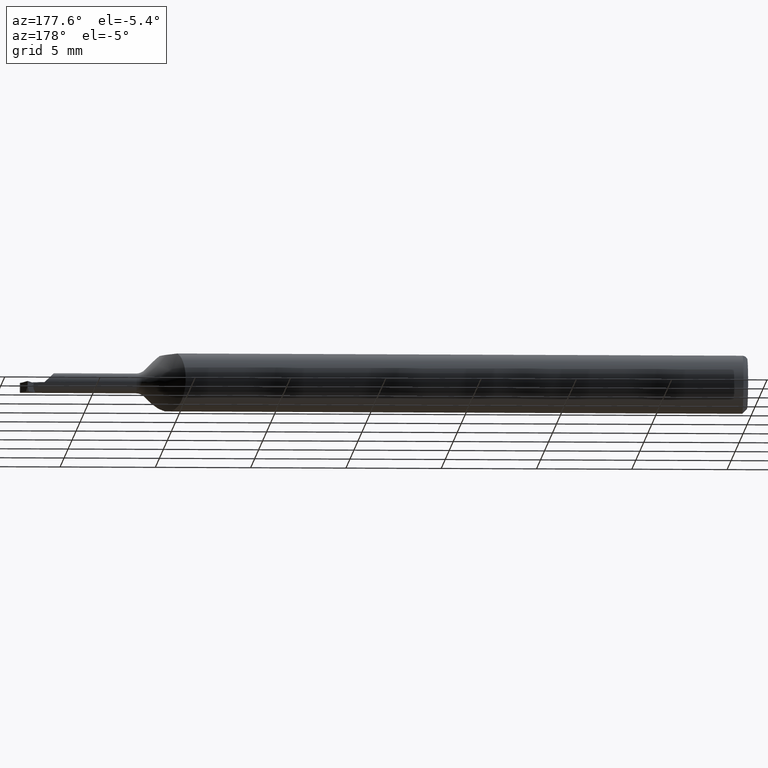
[diagram: clean part render]
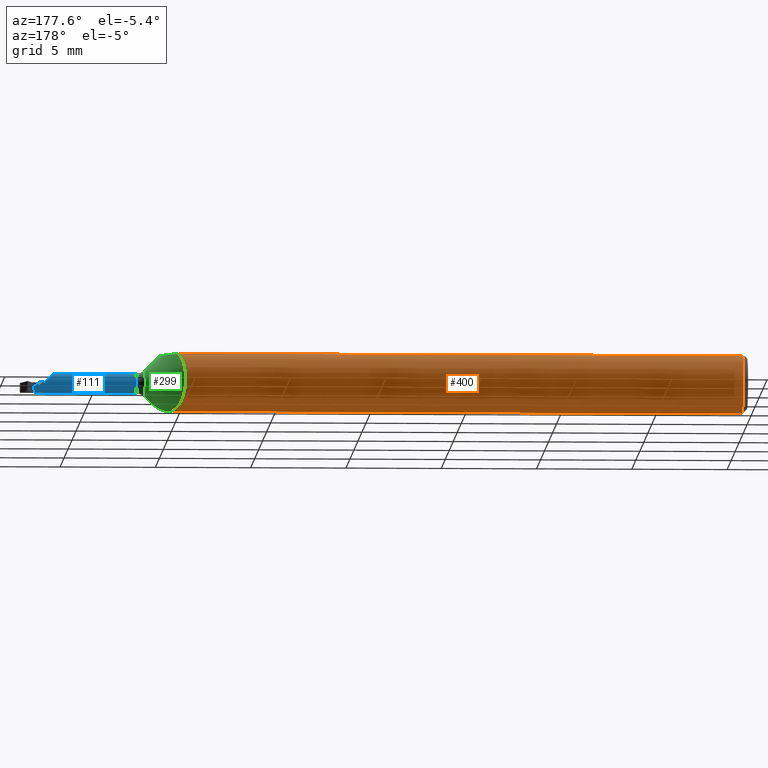
[diagram: same view with three faces highlighted in distinct colors, each labeled with its STEP entity id]
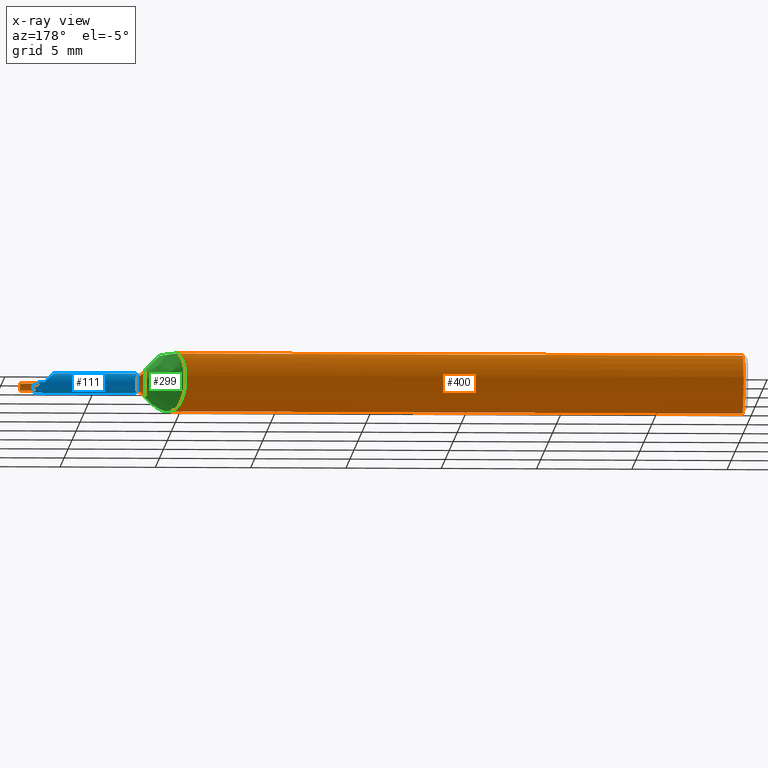
[diagram: x-ray of the same camera — body ghosted, the three highlighted faces saturated]
A machine part, auxiliary view with three faces highlighted in distinct colors.
The next image is the same camera in x-ray (body ghosted, the three faces saturated) — at least one of them is partly hidden behind the body in this view.
Their STEP definitions:

[orange] entity #400 — the highlighted cylindrical surface (edge-blend (fillet) strip) has radius 1.5837 mm, axis along (-1, -0, -0).
#2 = CARTESIAN_POINT ( 'NONE',  ( 1.173024731397746434, 0.03825853781157387973, -0.04944625274692381056 ) ) ;
#11 = ORIENTED_EDGE ( 'NONE', *, *, #515, .F. ) ;
#20 = EDGE_CURVE ( 'NONE', #106, #502, #165, .T. ) ;
#23 = AXIS2_PLACEMENT_3D ( 'NONE', #283, #909, #440 ) ;
#36 = DIRECTION ( 'NONE',  ( -1.000000000000000000, -0.000000000000000000, -0.000000000000000000 ) ) ;
#48 = CARTESIAN_POINT ( 'NONE',  ( 1.242677669529663298, -0.05687745831187993734, 0.02554363396191623378 ) ) ;
#50 = VERTEX_POINT ( 'NONE', #65 ) ;
#51 = CARTESIAN_POINT ( 'NONE',  ( 1.228247189442594367, -0.04585000000002275450, 0.04225281055742636377 ) ) ;
#53 = EDGE_CURVE ( 'NONE', #106, #215, #620, .T. ) ;
#54 = VERTEX_POINT ( 'NONE', #406 ) ;
#56 = CARTESIAN_POINT ( 'NONE',  ( 1.170491615801071417, 0.04372076200736786655, 0.04469405255061478788 ) ) ;
#59 = VECTOR ( 'NONE', #876, 39.37007874015748143 ) ;
#65 = CARTESIAN_POINT ( 'NONE',  ( 1.228247189442594367, -0.04585000000002275450, 0.04225281055742636377 ) ) ;
#69 = CARTESIAN_POINT ( 'NONE',  ( 1.189873853040696261, 0.005509881107685125033, -0.06225661922154390043 ) ) ;
#70 = CARTESIAN_POINT ( 'NONE',  ( 1.247200815795312501, -0.05905930906372162947, 0.02011672188027488484 ) ) ;
#74 = CARTESIAN_POINT ( 'NONE',  ( 1.445300901182856812, -0.06233851456489739040, 0.004849098817142990028 ) ) ;
#81 = CARTESIAN_POINT ( 'NONE',  ( 1.242677669529663298, -0.05687745831187993734, 0.02554363396191623378 ) ) ;
#84 = EDGE_CURVE ( 'NONE', #878, #54, #1014, .T. ) ;
#85 = CARTESIAN_POINT ( 'NONE',  ( 0.009999999999999620304, 0.02870365830342891042, 0.05534999999999997561 ) ) ;
#90 = CARTESIAN_POINT ( 'NONE',  ( 1.233105114234022359, -0.05032679336781536311, -0.03739488576597743696 ) ) ;
#106 = VERTEX_POINT ( 'NONE', #224 ) ;
#125 = LINE ( 'NONE', #997, #933 ) ;
#128 = EDGE_CURVE ( 'NONE', #882, #905, #211, .T. ) ;
#131 = CARTESIAN_POINT ( 'NONE',  ( 1.499999999999999778, 0.000000000000000000, 0.000000000000000000 ) ) ;
#136 = CARTESIAN_POINT ( 'NONE',  ( 1.171349200367078680, 0.04186449944433034975, -0.04644039343514746315 ) ) ;
#137 = CARTESIAN_POINT ( 'NONE',  ( 1.256594200296845099, -0.06073604143947654993, 0.01409452979925854450 ) ) ;
#139 = CIRCLE ( 'NONE', #226, 0.06235000000000000264 ) ;
#142 = CARTESIAN_POINT ( 'NONE',  ( 1.212555030127062894, -0.02870365830342886532, 0.05534999999999997561 ) ) ;
#143 = CARTESIAN_POINT ( 'NONE',  ( 1.164106684748499321, 0.05811786118021210895, -0.02310481078010277051 ) ) ;
#150 = CARTESIAN_POINT ( 'NONE',  ( 1.176699005073006843, 0.03059440106361651854, -0.05452183278055570959 ) ) ;
#155 = CARTESIAN_POINT ( 'NONE',  ( 1.228247189442594367, -0.04584999999999999493, -0.04225281055740553321 ) ) ;
#165 = B_SPLINE_CURVE_WITH_KNOTS ( 'NONE', 3,
 ( #397, #137, #700, #70, #794, #81 ),
 .UNSPECIFIED., .F., .F.,
 ( 4, 2, 4 ),
 ( 0.000000000000000000, 0.0002819293705660921791, 0.0005638587411321842498 ),
 .UNSPECIFIED. ) ;
#176 = CARTESIAN_POINT ( 'NONE',  ( 1.238059320528413609, -0.05407498869050337414, -0.03178383256865345563 ) ) ;
#181 = CARTESIAN_POINT ( 'NONE',  ( 1.247193640274936843, -0.05905648292962700080, -0.02012478269061568001 ) ) ;
#188 = FACE_OUTER_BOUND ( 'NONE', #342, .T. ) ;
#189 = CIRCLE ( 'NONE', #276, 0.06235000000000000264 ) ;
#197 = CARTESIAN_POINT ( 'NONE',  ( 1.238067595673462140, -0.05408001014786927713, 0.03177265139793906956 ) ) ;
#203 = ORIENTED_EDGE ( 'NONE', *, *, #53, .F. ) ;
#207 = EDGE_CURVE ( 'NONE', #807, #812, #555, .T. ) ;
#211 = B_SPLINE_CURVE_WITH_KNOTS ( 'NONE', 3,
 ( #260, #811, #181, #565, #501, #898 ),
 .UNSPECIFIED., .F., .F.,
 ( 4, 2, 4 ),
 ( 0.000000000000000000, 0.0002799275019256962285, 0.0005598550038513923485 ),
 .UNSPECIFIED. ) ;
#213 = CARTESIAN_POINT ( 'NONE',  ( 1.449999999999999734, -0.06234981956669986836, 0.0001500000000000031582 ) ) ;
#215 = VERTEX_POINT ( 'NONE', #797 ) ;
#217 = DIRECTION ( 'NONE',  ( 0.000000000000000000, 0.000000000000000000, -1.000000000000000000 ) ) ;
#218 = DIRECTION ( 'NONE',  ( -1.000000000000000000, -0.000000000000000000, -0.000000000000000000 ) ) ;
#223 = CARTESIAN_POINT ( 'NONE',  ( 1.212555030127062894, -0.02870365830342886532, 0.05534999999999997561 ) ) ;
#224 = CARTESIAN_POINT ( 'NONE',  ( 1.260355339059327173, -0.06073604143947654993, 0.01409452979925854450 ) ) ;
#226 = AXIS2_PLACEMENT_3D ( 'NONE', #131, #448, #217 ) ;
#233 = CARTESIAN_POINT ( 'NONE',  ( 1.200027046801134700, -0.01123939366574174502, -0.06146755997571435454 ) ) ;
#237 = LINE ( 'NONE', #607, #601 ) ;
#239 = CARTESIAN_POINT ( 'NONE',  ( 1.359999999999999654, -0.06073604143947654993, 0.01409452979925854450 ) ) ;
#248 = CARTESIAN_POINT ( 'NONE',  ( 0.009999999999999620304, 0.000000000000000000, -0.06235000000000000264 ) ) ;
#260 = CARTESIAN_POINT ( 'NONE',  ( 1.242677669529663298, -0.05687745831187995815, -0.02554363396191619215 ) ) ;
#270 = EDGE_CURVE ( 'NONE', #539, #594, #636, .T. ) ;
#276 = AXIS2_PLACEMENT_3D ( 'NONE', #655, #559, #484 ) ;
#279 =( BOUNDED_CURVE ( )  B_SPLINE_CURVE ( 3, ( #213, #74, #859, #847 ),
 .UNSPECIFIED., .F., .F. ) 
 B_SPLINE_CURVE_WITH_KNOTS ( ( 4, 4 ),
 ( 4.714794756562621814, 4.940414924607585689 ),
 .UNSPECIFIED. ) 
 CURVE ( )  GEOMETRIC_REPRESENTATION_ITEM ( )  RATIONAL_B_SPLINE_CURVE ( ( 1.000000000000000000, 0.9957624584620177188, 0.9957624584620177188, 1.000000000000000000 ) ) 
 REPRESENTATION_ITEM ( '' )  );
#283 = CARTESIAN_POINT ( 'NONE',  ( 0.009999999999999620304, 0.000000000000000000, 0.000000000000000000 ) ) ;
#305 = EDGE_CURVE ( 'NONE', #50, #502, #378, .T. ) ;
#311 = CARTESIAN_POINT ( 'NONE',  ( 1.168995965620343469, 0.04701950172801857425, 0.04122538665726509927 ) ) ;
#316 = CARTESIAN_POINT ( 'NONE',  ( 0.009999999999999623773, -0.02870365830342891042, 0.05534999999999997561 ) ) ;
#318 = DIRECTION ( 'NONE',  ( -1.000000000000000000, -0.000000000000000000, -0.000000000000000000 ) ) ;
#321 = CARTESIAN_POINT ( 'NONE',  ( 1.163436468694904802, 0.05967634408255791806, 0.02057378980030917862 ) ) ;
#324 = CARTESIAN_POINT ( 'NONE',  ( 1.242677669529663298, -0.05687745831187995815, -0.02554363396191619215 ) ) ;
#342 = EDGE_LOOP ( 'NONE', ( #664, #895, #675, #467, #349, #203, #541, #609, #781, #581, #901, #534, #371, #970, #11, #679 ) ) ;
#349 = ORIENTED_EDGE ( 'NONE', *, *, #877, .T. ) ;
#351 = EDGE_CURVE ( 'NONE', #594, #638, #125, .T. ) ;
#359 = DIRECTION ( 'NONE',  ( 0.000000000000000000, 0.000000000000000000, 1.000000000000000000 ) ) ;
#364 = AXIS2_PLACEMENT_3D ( 'NONE', #677, #917, #435 ) ;
#371 = ORIENTED_EDGE ( 'NONE', *, *, #351, .T. ) ;
#378 = B_SPLINE_CURVE_WITH_KNOTS ( 'NONE', 3,
 ( #51, #591, #197, #48 ),
 .UNSPECIFIED., .F., .F.,
 ( 4, 4 ),
 ( 0.0006779514429391571284, 0.001302524482020356571 ),
 .UNSPECIFIED. ) ;
#379 = CARTESIAN_POINT ( 'NONE',  ( 1.162246055871232198, 0.06246055375697842638, -0.009065539242572986933 ) ) ;
#380 = VECTOR ( 'NONE', #318, 39.37007874015748143 ) ;
#393 = VERTEX_POINT ( 'NONE', #903 ) ;
#394 = VERTEX_POINT ( 'NONE', #508 ) ;
#397 = CARTESIAN_POINT ( 'NONE',  ( 1.260355339059327173, -0.06073604143947654993, 0.01409452979925854450 ) ) ;
#400 = ADVANCED_FACE ( 'NONE', ( #188 ), #828, .T. ) ;
#406 = CARTESIAN_POINT ( 'NONE',  ( 1.449999999999999734, -0.06234999999999999570, -6.429183357567478880E-17 ) ) ;
#417 = EDGE_CURVE ( 'NONE', #393, #905, #237, .T. ) ;
#432 = CARTESIAN_POINT ( 'NONE',  ( 1.499999999999999778, 0.000000000000000000, 0.000000000000000000 ) ) ;
#435 = DIRECTION ( 'NONE',  ( 0.000000000000000000, 0.000000000000000000, -1.000000000000000000 ) ) ;
#440 = DIRECTION ( 'NONE',  ( 0.000000000000000000, 0.000000000000000000, -1.000000000000000000 ) ) ;
#448 = DIRECTION ( 'NONE',  ( 1.000000000000000000, 0.000000000000000000, 0.000000000000000000 ) ) ;
#451 = EDGE_CURVE ( 'NONE', #807, #50, #563, .T. ) ;
#452 = EDGE_CURVE ( 'NONE', #394, #638, #551, .T. ) ;
#455 = CARTESIAN_POINT ( 'NONE',  ( 1.260355339059327173, -0.06073604143947654993, -0.01409452979925854450 ) ) ;
#457 = CARTESIAN_POINT ( 'NONE',  ( 1.165159146366741005, 0.05562058556853785585, 0.02975310323614190761 ) ) ;
#465 = CARTESIAN_POINT ( 'NONE',  ( 1.449999999999999734, -0.06234981956669986836, 0.0001500000000000031582 ) ) ;
#467 = ORIENTED_EDGE ( 'NONE', *, *, #587, .T. ) ;
#470 = VERTEX_POINT ( 'NONE', #465 ) ;
#478 = CARTESIAN_POINT ( 'NONE',  ( 1.499999999999999778, -0.02870365830342891042, 0.05534999999999997561 ) ) ;
#484 = DIRECTION ( 'NONE',  ( 0.000000000000000000, 0.000000000000000000, 1.000000000000000000 ) ) ;
#501 = CARTESIAN_POINT ( 'NONE',  ( 1.256593308052265545, -0.06073604143947656381, -0.01409452979925855318 ) ) ;
#502 = VERTEX_POINT ( 'NONE', #649 ) ;
#508 = CARTESIAN_POINT ( 'NONE',  ( 1.228247189442594367, -0.04584999999999999493, -0.04225281055740553321 ) ) ;
#515 = EDGE_CURVE ( 'NONE', #882, #394, #939, .T. ) ;
#516 = CARTESIAN_POINT ( 'NONE',  ( 1.177645972266010643, 0.02870365830342895205, 0.05534999999999997561 ) ) ;
#533 = CARTESIAN_POINT ( 'NONE',  ( 1.216572766500303659, -0.03394577272307501559, -0.05291155452862312397 ) ) ;
#534 = ORIENTED_EDGE ( 'NONE', *, *, #270, .T. ) ;
#537 = CARTESIAN_POINT ( 'NONE',  ( 1.185151787421268033, 0.01405668390900592819, -0.06089872793580693167 ) ) ;
#539 = VERTEX_POINT ( 'NONE', #248 ) ;
#541 = ORIENTED_EDGE ( 'NONE', *, *, #20, .T. ) ;
#547 = CARTESIAN_POINT ( 'NONE',  ( 1.175644335077459246, 0.03275731315662763071, 0.05324783696863134158 ) ) ;
#551 = B_SPLINE_CURVE_WITH_KNOTS ( 'NONE', 3,
 ( #155, #624, #533, #872, #937, #233, #628, #767, #69, #537, #693, #853, #150, #2, #136, #697, #865, #787, #143, #379, #1013, #321, #457, #311, #56, #688, #547, #1017 ),
 .UNSPECIFIED., .F., .F.,
 ( 4, 2, 2, 2, 2, 2, 2, 2, 2, 2, 2, 2, 2, 4 ),
 ( 0.0009871020189959989026, 0.001737112087433813953, 0.002112117121652724513, 0.002487122155871634641, 0.002862127190090545201, 0.003237132224309455762, 0.003612137258528365889, 0.003987142292747276884, 0.004362147326966187011, 0.004737152361185097138, 0.005487162429622919127, 0.006237172498060739381, 0.006612177532279651243, 0.006987182566498564840 ),
 .UNSPECIFIED. ) ;
#555 = LINE ( 'NONE', #478, #59 ) ;
#559 = DIRECTION ( 'NONE',  ( -1.000000000000000000, -0.000000000000000000, -0.000000000000000000 ) ) ;
#563 = B_SPLINE_CURVE_WITH_KNOTS ( 'NONE', 3,
 ( #223, #773, #779, #868 ),
 .UNSPECIFIED., .F., .F.,
 ( 4, 4 ),
 ( 5.235567652434724495E-07, 0.0006779514429391571284 ),
 .UNSPECIFIED. ) ;
#565 = CARTESIAN_POINT ( 'NONE',  ( 1.253101150543774578, -0.06036353463636463107, -0.01577715882426994690 ) ) ;
#581 = ORIENTED_EDGE ( 'NONE', *, *, #207, .T. ) ;
#582 = VECTOR ( 'NONE', #947, 39.37007874015748143 ) ;
#587 = EDGE_CURVE ( 'NONE', #54, #470, #189, .T. ) ;
#591 = CARTESIAN_POINT ( 'NONE',  ( 1.233135177025256324, -0.05035449756460536053, 0.03736482297474335440 ) ) ;
#594 = VERTEX_POINT ( 'NONE', #85 ) ;
#601 = VECTOR ( 'NONE', #218, 39.37007874015748143 ) ;
#607 = CARTESIAN_POINT ( 'NONE',  ( 1.359999999999999654, -0.06073604143947654993, -0.01409452979925854450 ) ) ;
#609 = ORIENTED_EDGE ( 'NONE', *, *, #305, .F. ) ;
#620 = LINE ( 'NONE', #239, #582 ) ;
#624 = CARTESIAN_POINT ( 'NONE',  ( 1.222447870617619392, -0.04050567023612468981, -0.04805212938238100778 ) ) ;
#628 = CARTESIAN_POINT ( 'NONE',  ( 1.197376058183617031, -0.007077928840765262790, -0.06208801370646226114 ) ) ;
#636 = CIRCLE ( 'NONE', #23, 0.06235000000000000264 ) ;
#638 = VERTEX_POINT ( 'NONE', #516 ) ;
#649 = CARTESIAN_POINT ( 'NONE',  ( 1.242677669529663298, -0.05687745831187993734, 0.02554363396191623378 ) ) ;
#655 = CARTESIAN_POINT ( 'NONE',  ( 1.449999999999999734, 0.000000000000000000, 0.000000000000000000 ) ) ;
#664 = ORIENTED_EDGE ( 'NONE', *, *, #417, .F. ) ;
#667 = EDGE_CURVE ( 'NONE', #812, #539, #771, .T. ) ;
#675 = ORIENTED_EDGE ( 'NONE', *, *, #84, .T. ) ;
#677 = CARTESIAN_POINT ( 'NONE',  ( 0.009999999999999620304, 0.000000000000000000, 0.000000000000000000 ) ) ;
#679 = ORIENTED_EDGE ( 'NONE', *, *, #128, .T. ) ;
#688 = CARTESIAN_POINT ( 'NONE',  ( 1.173801016958285093, 0.03662170433257466023, 0.05067459063159267946 ) ) ;
#693 = CARTESIAN_POINT ( 'NONE',  ( 1.182876066566163065, 0.01836177356840440131, -0.05974854137848181063 ) ) ;
#696 = CARTESIAN_POINT ( 'NONE',  ( 1.499999999999999778, -0.06234999999999984999, -6.429183357567480113E-17 ) ) ;
#697 = CARTESIAN_POINT ( 'NONE',  ( 1.168408813451958128, 0.04831738170102994195, -0.03968346105990002565 ) ) ;
#700 = CARTESIAN_POINT ( 'NONE',  ( 1.253121605483960899, -0.06036681601740046671, 0.01576489804007136925 ) ) ;
#716 = CARTESIAN_POINT ( 'NONE',  ( 1.228247189442594367, -0.04584999999999999493, -0.04225281055740553321 ) ) ;
#751 = DIRECTION ( 'NONE',  ( 1.000000000000000000, 0.000000000000000000, 0.000000000000000000 ) ) ;
#767 = CARTESIAN_POINT ( 'NONE',  ( 1.192311695849070485, 0.001278669187943269961, -0.06247706401389704206 ) ) ;
#771 = CIRCLE ( 'NONE', #364, 0.06235000000000000264 ) ;
#773 = CARTESIAN_POINT ( 'NONE',  ( 1.217738018010482204, -0.03525388898514154185, 0.05195315115995453176 ) ) ;
#779 = CARTESIAN_POINT ( 'NONE',  ( 1.222945553142962716, -0.04096430677835127820, 0.04755444685703752450 ) ) ;
#781 = ORIENTED_EDGE ( 'NONE', *, *, #451, .F. ) ;
#787 = CARTESIAN_POINT ( 'NONE',  ( 1.164952412170646712, 0.05615467778870777971, -0.02752406185891902168 ) ) ;
#794 = CARTESIAN_POINT ( 'NONE',  ( 1.244762073902410338, -0.05814229991040521101, 0.02272723847964026531 ) ) ;
#797 = CARTESIAN_POINT ( 'NONE',  ( 1.436055470200741313, -0.06073604143947655687, 0.01409452979925853583 ) ) ;
#807 = VERTEX_POINT ( 'NONE', #142 ) ;
#811 = CARTESIAN_POINT ( 'NONE',  ( 1.244762867054338695, -0.05814278120451760873, -0.02272616679243027321 ) ) ;
#812 = VERTEX_POINT ( 'NONE', #316 ) ;
#828 = CYLINDRICAL_SURFACE ( 'NONE', #966, 0.06235000000000000264 ) ;
#847 = CARTESIAN_POINT ( 'NONE',  ( 1.436055470200741313, -0.06073604143947655687, 0.01409452979925853583 ) ) ;
#853 = CARTESIAN_POINT ( 'NONE',  ( 1.178664618266681563, 0.02660368881035467259, -0.05656223711201066595 ) ) ;
#859 = CARTESIAN_POINT ( 'NONE',  ( 1.440632943920306275, -0.06179829933802637870, 0.009517056079693416229 ) ) ;
#865 = CARTESIAN_POINT ( 'NONE',  ( 1.167110507043975787, 0.05123749084332871601, -0.03585584123747483781 ) ) ;
#866 = CARTESIAN_POINT ( 'NONE',  ( 1.499999999999999778, -0.06235000000000000264, -6.429183357567480113E-17 ) ) ;
#868 = CARTESIAN_POINT ( 'NONE',  ( 1.228247189442594367, -0.04585000000002275450, 0.04225281055742636377 ) ) ;
#872 = CARTESIAN_POINT ( 'NONE',  ( 1.208190346731367937, -0.02306498721321714046, -0.05806578391750739226 ) ) ;
#876 = DIRECTION ( 'NONE',  ( -1.000000000000000000, -0.000000000000000000, -0.000000000000000000 ) ) ;
#877 = EDGE_CURVE ( 'NONE', #470, #215, #279, .T. ) ;
#878 = VERTEX_POINT ( 'NONE', #696 ) ;
#882 = VERTEX_POINT ( 'NONE', #1012 ) ;
#883 = EDGE_CURVE ( 'NONE', #878, #393, #139, .T. ) ;
#895 = ORIENTED_EDGE ( 'NONE', *, *, #883, .F. ) ;
#898 = CARTESIAN_POINT ( 'NONE',  ( 1.260355339059327173, -0.06073604143947654993, -0.01409452979925854450 ) ) ;
#901 = ORIENTED_EDGE ( 'NONE', *, *, #667, .T. ) ;
#903 = CARTESIAN_POINT ( 'NONE',  ( 1.499999999999999778, -0.06073604143947654299, -0.01409452979925858093 ) ) ;
#905 = VERTEX_POINT ( 'NONE', #455 ) ;
#909 = DIRECTION ( 'NONE',  ( 1.000000000000000000, -0.000000000000000000, -0.000000000000000000 ) ) ;
#917 = DIRECTION ( 'NONE',  ( 1.000000000000000000, -0.000000000000000000, -0.000000000000000000 ) ) ;
#933 = VECTOR ( 'NONE', #751, 39.37007874015748143 ) ;
#937 = CARTESIAN_POINT ( 'NONE',  ( 1.205447206104312885, -0.01924998405761402936, -0.05944764934901262260 ) ) ;
#939 = B_SPLINE_CURVE_WITH_KNOTS ( 'NONE', 3,
 ( #324, #176, #90, #716 ),
 .UNSPECIFIED., .F., .F.,
 ( 4, 4 ),
 ( 0.0003588398704150966723, 0.0009871020189959989026 ),
 .UNSPECIFIED. ) ;
#947 = DIRECTION ( 'NONE',  ( 1.000000000000000000, 0.000000000000000000, 0.000000000000000000 ) ) ;
#966 = AXIS2_PLACEMENT_3D ( 'NONE', #432, #36, #359 ) ;
#970 = ORIENTED_EDGE ( 'NONE', *, *, #452, .F. ) ;
#997 = CARTESIAN_POINT ( 'NONE',  ( 1.499999999999999778, 0.02870365830342891042, 0.05534999999999997561 ) ) ;
#1012 = CARTESIAN_POINT ( 'NONE',  ( 1.242677669529663298, -0.05687745831187995815, -0.02554363396191619215 ) ) ;
#1013 = CARTESIAN_POINT ( 'NONE',  ( 1.161974985685638506, 0.06311232005218925245, 0.001175554097938812537 ) ) ;
#1014 = LINE ( 'NONE', #866, #380 ) ;
#1017 = CARTESIAN_POINT ( 'NONE',  ( 1.177645972266010643, 0.02870365830342895205, 0.05534999999999997561 ) ) ;

[blue] entity #111 — the highlighted cylindrical surface (edge-blend (fillet) strip) has radius 0.5207 mm, axis along (-1, -0, -0).
#1 = LINE ( 'NONE', #377, #672 ) ;
#5 = LINE ( 'NONE', #17, #873 ) ;
#17 = CARTESIAN_POINT ( 'NONE',  ( 1.249999999999999778, -0.04585000000000000187, -0.02050000000000000086 ) ) ;
#19 = ORIENTED_EDGE ( 'NONE', *, *, #738, .T. ) ;
#28 = EDGE_LOOP ( 'NONE', ( #429, #133, #44, #889, #19, #437, #110, #255, #934, #73, #372, #492 ) ) ;
#30 = LINE ( 'NONE', #747, #567 ) ;
#33 = EDGE_CURVE ( 'NONE', #831, #66, #1004, .T. ) ;
#44 = ORIENTED_EDGE ( 'NONE', *, *, #126, .T. ) ;
#57 = VERTEX_POINT ( 'NONE', #388 ) ;
#66 = VERTEX_POINT ( 'NONE', #231 ) ;
#67 = CARTESIAN_POINT ( 'NONE',  ( 1.449999999999999734, -0.02535054878783337545, 0.0001500000000000031310 ) ) ;
#73 = ORIENTED_EDGE ( 'NONE', *, *, #956, .F. ) ;
#77 = DIRECTION ( 'NONE',  ( -1.000000000000000000, -0.000000000000000000, -0.000000000000000000 ) ) ;
#79 = CARTESIAN_POINT ( 'NONE',  ( 1.473184286881441540, -0.02868510590563277604, -0.01223947311910594284 ) ) ;
#83 = CARTESIAN_POINT ( 'NONE',  ( 1.464240087305805904, -0.02562850207324500126, -0.003909411902700324001 ) ) ;
#92 = VERTEX_POINT ( 'NONE', #612 ) ;
#104 = DIRECTION ( 'NONE',  ( 0.000000000000000000, 0.000000000000000000, 1.000000000000000000 ) ) ;
#105 = AXIS2_PLACEMENT_3D ( 'NONE', #729, #195, #287 ) ;
#110 = ORIENTED_EDGE ( 'NONE', *, *, #320, .T. ) ;
#111 = ADVANCED_FACE ( 'NONE', ( #144 ), #462, .T. ) ;
#126 = EDGE_CURVE ( 'NONE', #974, #173, #985, .T. ) ;
#133 = ORIENTED_EDGE ( 'NONE', *, *, #496, .T. ) ;
#144 = FACE_OUTER_BOUND ( 'NONE', #28, .T. ) ;
#158 = CARTESIAN_POINT ( 'NONE',  ( 1.462970569512303642, -0.02544130778768836226, -0.001932687813155591679 ) ) ;
#173 = VERTEX_POINT ( 'NONE', #346 ) ;
#175 = CARTESIAN_POINT ( 'NONE',  ( 1.472057310805445995, -0.03198806042916387676, -0.01588347955703180853 ) ) ;
#195 = DIRECTION ( 'NONE',  ( -1.000000000000000000, -0.000000000000000000, -0.000000000000000000 ) ) ;
#231 = CARTESIAN_POINT ( 'NONE',  ( 1.449999999999999734, -0.02535000000000000794, -6.429183357567478880E-17 ) ) ;
#255 = ORIENTED_EDGE ( 'NONE', *, *, #800, .T. ) ;
#287 = DIRECTION ( 'NONE',  ( 0.000000000000000000, 0.000000000000000000, 1.000000000000000000 ) ) ;
#298 = DIRECTION ( 'NONE',  ( -1.000000000000000000, -0.000000000000000000, -0.000000000000000000 ) ) ;
#303 = CARTESIAN_POINT ( 'NONE',  ( 1.462970569512303642, -0.02544130778768836226, -0.001932687813155591679 ) ) ;
#312 = CARTESIAN_POINT ( 'NONE',  ( 1.449999999999999734, -0.04585000000000000187, 0.000000000000000000 ) ) ;
#313 = AXIS2_PLACEMENT_3D ( 'NONE', #881, #742, #104 ) ;
#320 = EDGE_CURVE ( 'NONE', #66, #652, #370, .T. ) ;
#326 = AXIS2_PLACEMENT_3D ( 'NONE', #312, #77, #548 ) ;
#334 = CARTESIAN_POINT ( 'NONE',  ( 1.473242438454203329, -0.02684273098138087454, -0.007679435165026234078 ) ) ;
#346 = CARTESIAN_POINT ( 'NONE',  ( 1.260355339059327173, -0.04585000000000000187, 0.02050000000000000086 ) ) ;
#348 =( BOUNDED_CURVE ( )  B_SPLINE_CURVE ( 3, ( #427, #996, #438, #756 ),
 .UNSPECIFIED., .F., .T. ) 
 B_SPLINE_CURVE_WITH_KNOTS ( ( 4, 4 ),
 ( 0.000000000000000000, 1.563479188330445746 ),
 .UNSPECIFIED. ) 
 CURVE ( )  GEOMETRIC_REPRESENTATION_ITEM ( )  RATIONAL_B_SPLINE_CURVE ( ( 1.000000000000000000, 0.8064593614509849573, 0.8064593614509849573, 1.000000000000000000 ) ) 
 REPRESENTATION_ITEM ( '' )  );
#368 = DIRECTION ( 'NONE',  ( 1.000000000000000000, 0.000000000000000000, 0.000000000000000000 ) ) ;
#370 = LINE ( 'NONE', #678, #670 ) ;
#372 = ORIENTED_EDGE ( 'NONE', *, *, #387, .F. ) ;
#377 = CARTESIAN_POINT ( 'NONE',  ( 1.249999999999999778, -0.04585000000000000187, 0.02050000000000000086 ) ) ;
#387 = EDGE_CURVE ( 'NONE', #953, #390, #30, .T. ) ;
#388 = CARTESIAN_POINT ( 'NONE',  ( 1.464624323545412166, -0.02544130778768810552, -0.001932687813155569345 ) ) ;
#390 = VERTEX_POINT ( 'NONE', #661 ) ;
#395 = CARTESIAN_POINT ( 'NONE',  ( 1.460775096044779175, -0.02535000000000001141, -0.0006841537383371144908 ) ) ;
#416 = DIRECTION ( 'NONE',  ( 0.000000000000000000, 0.000000000000000000, 1.000000000000000000 ) ) ;
#427 = CARTESIAN_POINT ( 'NONE',  ( 1.429649999999999643, -0.04585000000000000187, 0.02050000000000000086 ) ) ;
#429 = ORIENTED_EDGE ( 'NONE', *, *, #627, .T. ) ;
#437 = ORIENTED_EDGE ( 'NONE', *, *, #33, .T. ) ;
#438 = CARTESIAN_POINT ( 'NONE',  ( 1.438061252516343203, -0.02543790781535141751, 0.01208874748365654575 ) ) ;
#444 = DIRECTION ( 'NONE',  ( 1.000000000000000000, 0.000000000000000000, 0.000000000000000000 ) ) ;
#456 =( BOUNDED_CURVE ( )  B_SPLINE_CURVE ( 3, ( #890, #175, #79, #813 ),
 .UNSPECIFIED., .F., .T. ) 
 B_SPLINE_CURVE_WITH_KNOTS ( ( 4, 4 ),
 ( 2.418137344043725268, 3.122880199127692880 ),
 .UNSPECIFIED. ) 
 CURVE ( )  GEOMETRIC_REPRESENTATION_ITEM ( )  RATIONAL_B_SPLINE_CURVE ( ( 1.000000000000000000, 0.9590379432971181117, 0.9590379432971181117, 1.000000000000000000 ) ) 
 REPRESENTATION_ITEM ( '' )  );
#462 = CYLINDRICAL_SURFACE ( 'NONE', #313, 0.02050000000000000086 ) ;
#474 = DIRECTION ( 'NONE',  ( -1.000000000000000000, -0.000000000000000000, -0.000000000000000000 ) ) ;
#488 = CIRCLE ( 'NONE', #105, 0.02050000000000000086 ) ;
#492 = ORIENTED_EDGE ( 'NONE', *, *, #1019, .F. ) ;
#493 = CARTESIAN_POINT ( 'NONE',  ( 1.463507269018619050, -0.02684273098138083638, -0.007679435165026165556 ) ) ;
#496 = EDGE_CURVE ( 'NONE', #92, #974, #5, .T. ) ;
#512 = DIRECTION ( 'NONE',  ( -1.000000000000000000, -0.000000000000000000, -0.000000000000000000 ) ) ;
#548 = DIRECTION ( 'NONE',  ( 0.000000000000000000, 0.000000000000000000, 1.000000000000000000 ) ) ;
#553 = CARTESIAN_POINT ( 'NONE',  ( 1.464624323545412166, -0.02544130778768810552, -0.001932687813155569345 ) ) ;
#567 = VECTOR ( 'NONE', #512, 39.37007874015748143 ) ;
#576 = DIRECTION ( 'NONE',  ( 1.000000000000000000, 0.000000000000000000, 0.000000000000000000 ) ) ;
#585 = CARTESIAN_POINT ( 'NONE',  ( 1.469999999999999973, -0.03634570712053440678, -0.01816365648379586820 ) ) ;
#612 = CARTESIAN_POINT ( 'NONE',  ( 1.469999999999999973, -0.04585000000000000187, -0.02050000000000000086 ) ) ;
#627 = EDGE_CURVE ( 'NONE', #765, #92, #488, .T. ) ;
#630 =( BOUNDED_CURVE ( )  B_SPLINE_CURVE ( 3, ( #493, #639, #83, #553 ),
 .UNSPECIFIED., .F., .T. ) 
 B_SPLINE_CURVE_WITH_KNOTS ( ( 4, 4 ),
 ( 1.186823891356147520, 1.476378650840423745 ),
 .UNSPECIFIED. ) 
 CURVE ( )  GEOMETRIC_REPRESENTATION_ITEM ( )  RATIONAL_B_SPLINE_CURVE ( ( 1.000000000000000000, 0.9930253655294954962, 0.9930253655294954962, 1.000000000000000000 ) ) 
 REPRESENTATION_ITEM ( '' )  );
#639 = CARTESIAN_POINT ( 'NONE',  ( 1.463865120540750242, -0.02609892415991058728, -0.005838448679723743859 ) ) ;
#648 = CARTESIAN_POINT ( 'NONE',  ( 1.260355339059327173, -0.04585000000000000187, -0.02050000000000000086 ) ) ;
#652 = VERTEX_POINT ( 'NONE', #982 ) ;
#661 = CARTESIAN_POINT ( 'NONE',  ( 1.463507269018619050, -0.02684273098138083638, -0.007679435165026165556 ) ) ;
#670 = VECTOR ( 'NONE', #444, 39.37007874015748143 ) ;
#672 = VECTOR ( 'NONE', #298, 39.37007874015748143 ) ;
#673 = CARTESIAN_POINT ( 'NONE',  ( 1.249999999999999778, -0.02544130778768810899, -0.001932687813155569562 ) ) ;
#678 = CARTESIAN_POINT ( 'NONE',  ( 1.249999999999999778, -0.02535000000000000100, -6.429183357567480113E-17 ) ) ;
#686 = CARTESIAN_POINT ( 'NONE',  ( 1.461864778937803200, -0.02538370742952415077, -0.001324442667154655633 ) ) ;
#698 = EDGE_CURVE ( 'NONE', #1011, #57, #750, .T. ) ;
#718 = CARTESIAN_POINT ( 'NONE',  ( 1.260355339059327173, -0.04585000000000000187, 0.000000000000000000 ) ) ;
#729 = CARTESIAN_POINT ( 'NONE',  ( 1.469999999999999973, -0.04585000000000000187, 0.000000000000000000 ) ) ;
#738 = EDGE_CURVE ( 'NONE', #748, #831, #348, .T. ) ;
#742 = DIRECTION ( 'NONE',  ( -1.000000000000000000, -0.000000000000000000, -0.000000000000000000 ) ) ;
#746 = CARTESIAN_POINT ( 'NONE',  ( 1.429649999999999643, -0.04585000000000000187, 0.02050000000000000086 ) ) ;
#747 = CARTESIAN_POINT ( 'NONE',  ( 1.249999999999999778, -0.02684273098138087454, -0.007679435165026234078 ) ) ;
#748 = VERTEX_POINT ( 'NONE', #746 ) ;
#750 = LINE ( 'NONE', #673, #950 ) ;
#756 = CARTESIAN_POINT ( 'NONE',  ( 1.449999999999999734, -0.02535054878783337545, 0.0001500000000000031310 ) ) ;
#765 = VERTEX_POINT ( 'NONE', #585 ) ;
#766 = CARTESIAN_POINT ( 'NONE',  ( 1.459707408249508509, -0.02535000000000000100, -2.696500665902594644E-16 ) ) ;
#800 = EDGE_CURVE ( 'NONE', #652, #1011, #891, .T. ) ;
#813 = CARTESIAN_POINT ( 'NONE',  ( 1.473242438454203329, -0.02684273098138087454, -0.007679435165026234078 ) ) ;
#825 = EDGE_CURVE ( 'NONE', #748, #173, #1, .T. ) ;
#831 = VERTEX_POINT ( 'NONE', #67 ) ;
#873 = VECTOR ( 'NONE', #474, 39.37007874015748143 ) ;
#881 = CARTESIAN_POINT ( 'NONE',  ( 1.249999999999999778, -0.04585000000000000187, 0.000000000000000000 ) ) ;
#886 = AXIS2_PLACEMENT_3D ( 'NONE', #718, #576, #416 ) ;
#889 = ORIENTED_EDGE ( 'NONE', *, *, #825, .F. ) ;
#890 = CARTESIAN_POINT ( 'NONE',  ( 1.469999999999999973, -0.03634570712053440678, -0.01816365648379586820 ) ) ;
#891 = B_SPLINE_CURVE_WITH_KNOTS ( 'NONE', 3,
 ( #766, #395, #686, #303 ),
 .UNSPECIFIED., .F., .F.,
 ( 4, 4 ),
 ( 0.001836786816469699333, 0.001931856590927496413 ),
 .UNSPECIFIED. ) ;
#934 = ORIENTED_EDGE ( 'NONE', *, *, #698, .T. ) ;
#950 = VECTOR ( 'NONE', #368, 39.37007874015748143 ) ;
#953 = VERTEX_POINT ( 'NONE', #334 ) ;
#956 = EDGE_CURVE ( 'NONE', #390, #57, #630, .T. ) ;
#974 = VERTEX_POINT ( 'NONE', #648 ) ;
#982 = CARTESIAN_POINT ( 'NONE',  ( 1.459707408249508509, -0.02535000000000000100, -2.696500665902594644E-16 ) ) ;
#985 = CIRCLE ( 'NONE', #886, 0.02050000000000000086 ) ;
#996 = CARTESIAN_POINT ( 'NONE',  ( 1.429649999999999643, -0.03391093290586721237, 0.02050000000000000086 ) ) ;
#1004 = CIRCLE ( 'NONE', #326, 0.02050000000000000086 ) ;
#1011 = VERTEX_POINT ( 'NONE', #158 ) ;
#1019 = EDGE_CURVE ( 'NONE', #765, #953, #456, .T. ) ;

[green] entity #299 — the highlighted conical surface has half-angle 45 deg.
#2 = CARTESIAN_POINT ( 'NONE',  ( 1.173024731397746434, 0.03825853781157387973, -0.04944625274692381056 ) ) ;
#10 = LINE ( 'NONE', #962, #871 ) ;
#18 = CARTESIAN_POINT ( 'NONE',  ( 1.242677669529663298, -0.04585000000000000187, 0.02782233047033637677 ) ) ;
#37 = ORIENTED_EDGE ( 'NONE', *, *, #604, .T. ) ;
#50 = VERTEX_POINT ( 'NONE', #65 ) ;
#56 = CARTESIAN_POINT ( 'NONE',  ( 1.170491615801071417, 0.04372076200736786655, 0.04469405255061478788 ) ) ;
#65 = CARTESIAN_POINT ( 'NONE',  ( 1.228247189442594367, -0.04585000000002275450, 0.04225281055742636377 ) ) ;
#69 = CARTESIAN_POINT ( 'NONE',  ( 1.189873853040696261, 0.005509881107685125033, -0.06225661922154390043 ) ) ;
#103 = DIRECTION ( 'NONE',  ( -1.000000000000000000, -0.000000000000000000, -0.000000000000000000 ) ) ;
#108 = CARTESIAN_POINT ( 'NONE',  ( 1.242677669529663298, -0.04585000000000000187, 0.000000000000000000 ) ) ;
#109 = DIRECTION ( 'NONE',  ( 0.000000000000000000, 0.000000000000000000, 1.000000000000000000 ) ) ;
#114 = LINE ( 'NONE', #602, #439 ) ;
#136 = CARTESIAN_POINT ( 'NONE',  ( 1.171349200367078680, 0.04186449944433034975, -0.04644039343514746315 ) ) ;
#142 = CARTESIAN_POINT ( 'NONE',  ( 1.212555030127062894, -0.02870365830342886532, 0.05534999999999997561 ) ) ;
#143 = CARTESIAN_POINT ( 'NONE',  ( 1.164106684748499321, 0.05811786118021210895, -0.02310481078010277051 ) ) ;
#150 = CARTESIAN_POINT ( 'NONE',  ( 1.176699005073006843, 0.03059440106361651854, -0.05452183278055570959 ) ) ;
#155 = CARTESIAN_POINT ( 'NONE',  ( 1.228247189442594367, -0.04584999999999999493, -0.04225281055740553321 ) ) ;
#220 = EDGE_CURVE ( 'NONE', #608, #394, #10, .T. ) ;
#223 = CARTESIAN_POINT ( 'NONE',  ( 1.212555030127062894, -0.02870365830342886532, 0.05534999999999997561 ) ) ;
#228 = VERTEX_POINT ( 'NONE', #18 ) ;
#233 = CARTESIAN_POINT ( 'NONE',  ( 1.200027046801134700, -0.01123939366574174502, -0.06146755997571435454 ) ) ;
#261 = ORIENTED_EDGE ( 'NONE', *, *, #220, .T. ) ;
#299 = ADVANCED_FACE ( 'NONE', ( #757 ), #398, .T. ) ;
#302 = ORIENTED_EDGE ( 'NONE', *, *, #452, .T. ) ;
#311 = CARTESIAN_POINT ( 'NONE',  ( 1.168995965620343469, 0.04701950172801857425, 0.04122538665726509927 ) ) ;
#314 = CIRCLE ( 'NONE', #637, 0.02782233047033637677 ) ;
#321 = CARTESIAN_POINT ( 'NONE',  ( 1.163436468694904802, 0.05967634408255791806, 0.02057378980030917862 ) ) ;
#331 = CARTESIAN_POINT ( 'NONE',  ( 1.177645972266010643, 0.02870365830342895205, 0.05534999999999997561 ) ) ;
#332 = DIRECTION ( 'NONE',  ( -0.7071067811865464625, 8.659560562354943952E-17, -0.7071067811865484609 ) ) ;
#355 = EDGE_CURVE ( 'NONE', #228, #50, #114, .T. ) ;
#379 = CARTESIAN_POINT ( 'NONE',  ( 1.162246055871232198, 0.06246055375697842638, -0.009065539242572986933 ) ) ;
#394 = VERTEX_POINT ( 'NONE', #508 ) ;
#398 = CONICAL_SURFACE ( 'NONE', #904, 0.2204999999999999460, 0.7853981633974497223 ) ;
#439 = VECTOR ( 'NONE', #918, 39.37007874015748854 ) ;
#450 = ORIENTED_EDGE ( 'NONE', *, *, #355, .F. ) ;
#451 = EDGE_CURVE ( 'NONE', #807, #50, #563, .T. ) ;
#452 = EDGE_CURVE ( 'NONE', #394, #638, #551, .T. ) ;
#457 = CARTESIAN_POINT ( 'NONE',  ( 1.165159146366741005, 0.05562058556853785585, 0.02975310323614190761 ) ) ;
#508 = CARTESIAN_POINT ( 'NONE',  ( 1.228247189442594367, -0.04584999999999999493, -0.04225281055740553321 ) ) ;
#516 = CARTESIAN_POINT ( 'NONE',  ( 1.177645972266010643, 0.02870365830342895205, 0.05534999999999997561 ) ) ;
#533 = CARTESIAN_POINT ( 'NONE',  ( 1.216572766500303659, -0.03394577272307501559, -0.05291155452862312397 ) ) ;
#537 = CARTESIAN_POINT ( 'NONE',  ( 1.185151787421268033, 0.01405668390900592819, -0.06089872793580693167 ) ) ;
#547 = CARTESIAN_POINT ( 'NONE',  ( 1.175644335077459246, 0.03275731315662763071, 0.05324783696863134158 ) ) ;
#551 = B_SPLINE_CURVE_WITH_KNOTS ( 'NONE', 3,
 ( #155, #624, #533, #872, #937, #233, #628, #767, #69, #537, #693, #853, #150, #2, #136, #697, #865, #787, #143, #379, #1013, #321, #457, #311, #56, #688, #547, #1017 ),
 .UNSPECIFIED., .F., .F.,
 ( 4, 2, 2, 2, 2, 2, 2, 2, 2, 2, 2, 2, 2, 4 ),
 ( 0.0009871020189959989026, 0.001737112087433813953, 0.002112117121652724513, 0.002487122155871634641, 0.002862127190090545201, 0.003237132224309455762, 0.003612137258528365889, 0.003987142292747276884, 0.004362147326966187011, 0.004737152361185097138, 0.005487162429622919127, 0.006237172498060739381, 0.006612177532279651243, 0.006987182566498564840 ),
 .UNSPECIFIED. ) ;
#563 = B_SPLINE_CURVE_WITH_KNOTS ( 'NONE', 3,
 ( #223, #773, #779, #868 ),
 .UNSPECIFIED., .F., .F.,
 ( 4, 4 ),
 ( 5.235567652434724495E-07, 0.0006779514429391571284 ),
 .UNSPECIFIED. ) ;
#586 = CARTESIAN_POINT ( 'NONE',  ( 1.050000000000000488, -0.04585000000000000187, 0.000000000000000000 ) ) ;
#590 = DIRECTION ( 'NONE',  ( 0.000000000000000000, 0.000000000000000000, 1.000000000000000000 ) ) ;
#599 = ORIENTED_EDGE ( 'NONE', *, *, #451, .T. ) ;
#602 = CARTESIAN_POINT ( 'NONE',  ( 1.050000000000000488, -0.04585000000000000187, 0.2204999999999999460 ) ) ;
#604 = EDGE_CURVE ( 'NONE', #638, #807, #803, .T. ) ;
#608 = VERTEX_POINT ( 'NONE', #801 ) ;
#624 = CARTESIAN_POINT ( 'NONE',  ( 1.222447870617619392, -0.04050567023612468981, -0.04805212938238100778 ) ) ;
#628 = CARTESIAN_POINT ( 'NONE',  ( 1.197376058183617031, -0.007077928840765262790, -0.06208801370646226114 ) ) ;
#637 = AXIS2_PLACEMENT_3D ( 'NONE', #108, #103, #590 ) ;
#638 = VERTEX_POINT ( 'NONE', #516 ) ;
#640 = CARTESIAN_POINT ( 'NONE',  ( 1.191568727354932244, 0.01087549412584695729, 0.05534999999999998949 ) ) ;
#674 = DIRECTION ( 'NONE',  ( -1.000000000000000000, -0.000000000000000000, -0.000000000000000000 ) ) ;
#685 = ORIENTED_EDGE ( 'NONE', *, *, #724, .T. ) ;
#688 = CARTESIAN_POINT ( 'NONE',  ( 1.173801016958285093, 0.03662170433257466023, 0.05067459063159267946 ) ) ;
#693 = CARTESIAN_POINT ( 'NONE',  ( 1.182876066566163065, 0.01836177356840440131, -0.05974854137848181063 ) ) ;
#697 = CARTESIAN_POINT ( 'NONE',  ( 1.168408813451958128, 0.04831738170102994195, -0.03968346105990002565 ) ) ;
#723 = CARTESIAN_POINT ( 'NONE',  ( 1.184712155253447641, 0.01990296943021408957, 0.05534999999999997561 ) ) ;
#724 = EDGE_CURVE ( 'NONE', #228, #608, #314, .T. ) ;
#757 = FACE_OUTER_BOUND ( 'NONE', #963, .T. ) ;
#767 = CARTESIAN_POINT ( 'NONE',  ( 1.192311695849070485, 0.001278669187943269961, -0.06247706401389704206 ) ) ;
#773 = CARTESIAN_POINT ( 'NONE',  ( 1.217738018010482204, -0.03525388898514154185, 0.05195315115995453176 ) ) ;
#779 = CARTESIAN_POINT ( 'NONE',  ( 1.222945553142962716, -0.04096430677835127820, 0.04755444685703752450 ) ) ;
#787 = CARTESIAN_POINT ( 'NONE',  ( 1.164952412170646712, 0.05615467778870777971, -0.02752406185891902168 ) ) ;
#801 = CARTESIAN_POINT ( 'NONE',  ( 1.242677669529663298, -0.04584999999999999493, -0.02782233047033637677 ) ) ;
#803 = B_SPLINE_CURVE_WITH_KNOTS ( 'NONE', 3,
 ( #331, #723, #640, #893, #815, #961 ),
 .UNSPECIFIED., .F., .F.,
 ( 4, 2, 4 ),
 ( 0.004296694103987497640, 0.005156719757166194906, 0.006016745410344891305 ),
 .UNSPECIFIED. ) ;
#807 = VERTEX_POINT ( 'NONE', #142 ) ;
#815 = CARTESIAN_POINT ( 'NONE',  ( 1.209304503121092056, -0.01771870928250380769, 0.05534999999999998255 ) ) ;
#853 = CARTESIAN_POINT ( 'NONE',  ( 1.178664618266681563, 0.02660368881035467259, -0.05656223711201066595 ) ) ;
#865 = CARTESIAN_POINT ( 'NONE',  ( 1.167110507043975787, 0.05123749084332871601, -0.03585584123747483781 ) ) ;
#868 = CARTESIAN_POINT ( 'NONE',  ( 1.228247189442594367, -0.04585000000002275450, 0.04225281055742636377 ) ) ;
#871 = VECTOR ( 'NONE', #332, 39.37007874015748854 ) ;
#872 = CARTESIAN_POINT ( 'NONE',  ( 1.208190346731367937, -0.02306498721321714046, -0.05806578391750739226 ) ) ;
#893 = CARTESIAN_POINT ( 'NONE',  ( 1.203807076401371301, -0.007960925841556861296, 0.05534999999999997561 ) ) ;
#904 = AXIS2_PLACEMENT_3D ( 'NONE', #586, #674, #109 ) ;
#918 = DIRECTION ( 'NONE',  ( -0.7071067811865464625, 0.000000000000000000, 0.7071067811865484609 ) ) ;
#937 = CARTESIAN_POINT ( 'NONE',  ( 1.205447206104312885, -0.01924998405761402936, -0.05944764934901262260 ) ) ;
#961 = CARTESIAN_POINT ( 'NONE',  ( 1.212555030127062894, -0.02870365830342886532, 0.05534999999999997561 ) ) ;
#962 = CARTESIAN_POINT ( 'NONE',  ( 1.050000000000000488, -0.04584999999999998105, -0.2204999999999999460 ) ) ;
#963 = EDGE_LOOP ( 'NONE', ( #685, #261, #302, #37, #599, #450 ) ) ;
#1013 = CARTESIAN_POINT ( 'NONE',  ( 1.161974985685638506, 0.06311232005218925245, 0.001175554097938812537 ) ) ;
#1017 = CARTESIAN_POINT ( 'NONE',  ( 1.177645972266010643, 0.02870365830342895205, 0.05534999999999997561 ) ) ;